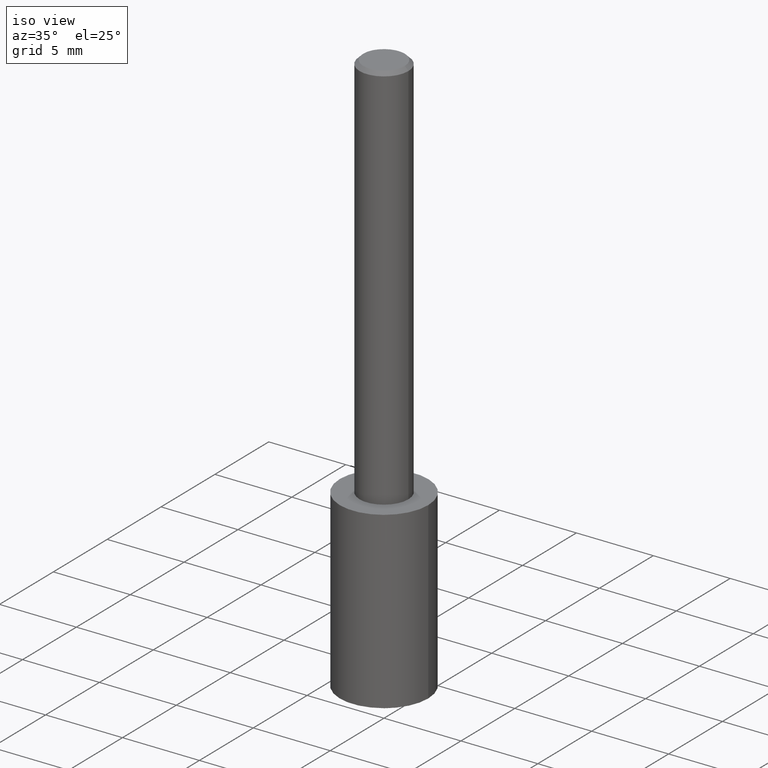
[diagram: clean part render]
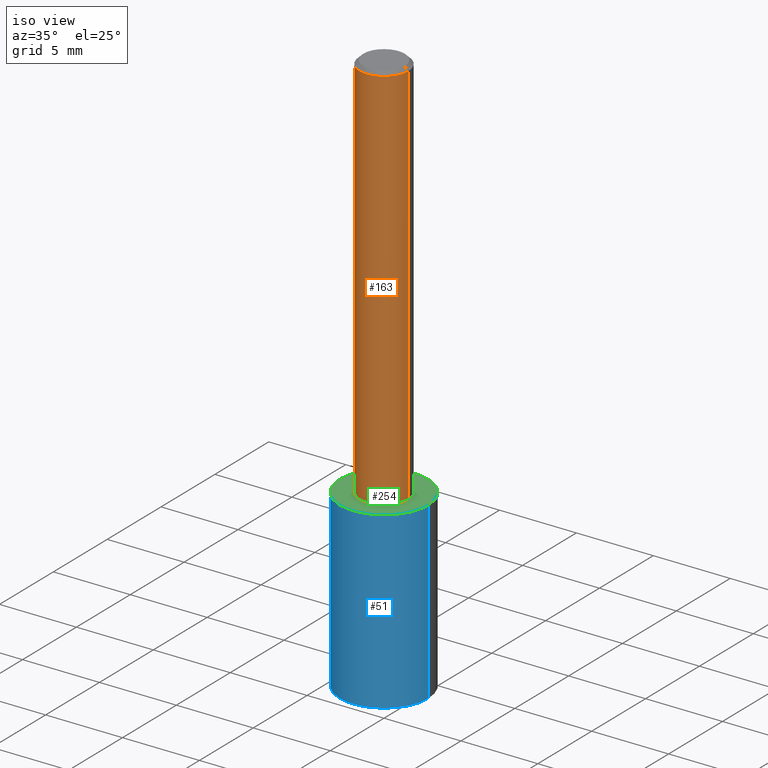
[diagram: same view with three faces highlighted in distinct colors, each labeled with its STEP entity id]
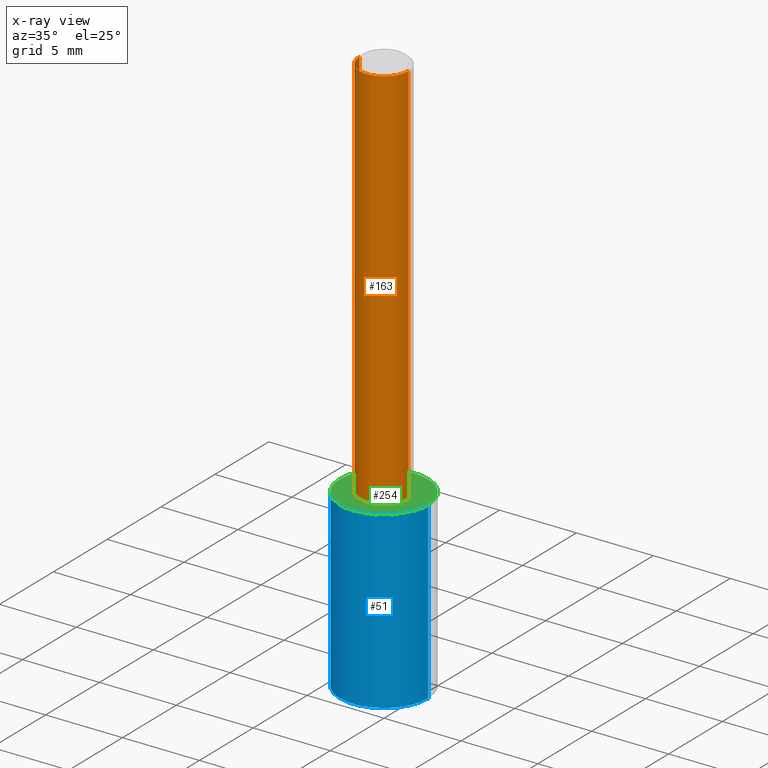
[diagram: x-ray of the same camera — body ghosted, the three highlighted faces saturated]
A machine part, iso view with three faces highlighted in distinct colors.
The next image is the same camera in x-ray (body ghosted, the three faces saturated) — at least one of them is partly hidden behind the body in this view.
Their STEP definitions:

[orange] entity #163 — the highlighted cylindrical surface (edge-blend (fillet) strip) has radius 1.5875 mm, axis along (-0, 0, 1).
#3 = DIRECTION ( 'NONE',  ( -2.445468806185136597E-29, 3.491481338843145583E-15, 1.000000000000000000 ) ) ;
#6 = DIRECTION ( 'NONE',  ( -2.445468806185136877E-29, 3.491481338843145188E-15, 1.000000000000000000 ) ) ;
#9 = AXIS2_PLACEMENT_3D ( 'NONE', #190, #183, #287 ) ;
#10 = EDGE_CURVE ( 'NONE', #187, #335, #184, .T. ) ;
#11 = DIRECTION ( 'NONE',  ( -2.445468806185136877E-29, 3.491481338843145188E-15, 1.000000000000000000 ) ) ;
#23 = ORIENTED_EDGE ( 'NONE', *, *, #70, .F. ) ;
#28 = AXIS2_PLACEMENT_3D ( 'NONE', #216, #3, #319 ) ;
#40 = CARTESIAN_POINT ( 'NONE',  ( 0.06250000000000006939, -4.364351673553921624E-16, 3.047610484872463374E-30 ) ) ;
#62 = ORIENTED_EDGE ( 'NONE', *, *, #10, .T. ) ;
#70 = EDGE_CURVE ( 'NONE', #187, #209, #292, .T. ) ;
#105 = DIRECTION ( 'NONE',  ( 1.000000000000000000, -6.982962677686266711E-15, 0.000000000000000000 ) ) ;
#136 = EDGE_LOOP ( 'NONE', ( #23, #62, #225, #299 ) ) ;
#142 = EDGE_CURVE ( 'NONE', #209, #327, #338, .T. ) ;
#146 = CARTESIAN_POINT ( 'NONE',  ( -0.06250000000000000000, -1.318017778347336672E-15, -0.009375000000000060368 ) ) ;
#163 = ADVANCED_FACE ( 'NONE', ( #245 ), #270, .T. ) ;
#165 = AXIS2_PLACEMENT_3D ( 'NONE', #321, #201, #105 ) ;
#183 = DIRECTION ( 'NONE',  ( -2.445468806185136597E-29, 3.491481338843145583E-15, 1.000000000000000000 ) ) ;
#184 = CIRCLE ( 'NONE', #9, 0.06250000000000012490 ) ;
#187 = VERTEX_POINT ( 'NONE', #218 ) ;
#190 = CARTESIAN_POINT ( 'NONE',  ( 2.445468806185137438E-29, -3.491481338843146371E-15, -1.000000000000000222 ) ) ;
#201 = DIRECTION ( 'NONE',  ( -2.445468806185136597E-29, 3.491481338843145583E-15, 1.000000000000000000 ) ) ;
#209 = VERTEX_POINT ( 'NONE', #146 ) ;
#216 = CARTESIAN_POINT ( 'NONE',  ( 0.000000000000000000, 0.000000000000000000, 0.000000000000000000 ) ) ;
#217 = VECTOR ( 'NONE', #11, 39.37007874015748143 ) ;
#218 = CARTESIAN_POINT ( 'NONE',  ( -0.06250000000000012490, -1.318017778347335489E-15, -1.000000000000000222 ) ) ;
#224 = CARTESIAN_POINT ( 'NONE',  ( 0.06250000000000000000, -4.691678049070463404E-16, -0.009375000000000060368 ) ) ;
#225 = ORIENTED_EDGE ( 'NONE', *, *, #272, .T. ) ;
#245 = FACE_OUTER_BOUND ( 'NONE', #136, .T. ) ;
#270 = CYLINDRICAL_SURFACE ( 'NONE', #28, 0.06250000000000006939 ) ;
#272 = EDGE_CURVE ( 'NONE', #335, #327, #302, .T. ) ;
#274 = CARTESIAN_POINT ( 'NONE',  ( -0.06250000000000006939, 4.440892098500631092E-16, -3.074334431409319267E-30 ) ) ;
#280 = CARTESIAN_POINT ( 'NONE',  ( 0.06250000000000012490, -3.927916506198539224E-15, -1.000000000000000222 ) ) ;
#287 = DIRECTION ( 'NONE',  ( 1.000000000000000000, -6.982962677686264344E-15, 0.000000000000000000 ) ) ;
#292 = LINE ( 'NONE', #274, #309 ) ;
#299 = ORIENTED_EDGE ( 'NONE', *, *, #142, .F. ) ;
#302 = LINE ( 'NONE', #40, #217 ) ;
#309 = VECTOR ( 'NONE', #6, 39.37007874015748143 ) ;
#319 = DIRECTION ( 'NONE',  ( 1.000000000000000000, -6.982962677686266711E-15, 4.876176775795935793E-29 ) ) ;
#321 = CARTESIAN_POINT ( 'NONE',  ( 2.292627005798580623E-31, -3.273263755165470184E-17, -0.009375000000000060368 ) ) ;
#327 = VERTEX_POINT ( 'NONE', #224 ) ;
#335 = VERTEX_POINT ( 'NONE', #280 ) ;
#338 = CIRCLE ( 'NONE', #165, 0.06250000000000000000 ) ;

[blue] entity #51 — the highlighted cylindrical surface (partial cylindrical patch) has radius 2.8753 mm, axis along (-0, 0, 1).
#8 = DIRECTION ( 'NONE',  ( -2.445468806185136597E-29, 3.491481338843145583E-15, 1.000000000000000000 ) ) ;
#22 = ORIENTED_EDGE ( 'NONE', *, *, #86, .T. ) ;
#29 = EDGE_LOOP ( 'NONE', ( #101, #215, #22, #242 ) ) ;
#30 = DIRECTION ( 'NONE',  ( -2.445468806185136597E-29, 3.491481338843145583E-15, 1.000000000000000000 ) ) ;
#38 = CIRCLE ( 'NONE', #125, 0.1131999999999999812 ) ;
#51 = ADVANCED_FACE ( 'NONE', ( #291 ), #74, .T. ) ;
#54 = LINE ( 'NONE', #78, #135 ) ;
#57 = DIRECTION ( 'NONE',  ( -2.445468806185136597E-29, 3.491481338843145583E-15, 1.000000000000000000 ) ) ;
#66 = DIRECTION ( 'NONE',  ( -2.445468806185136877E-29, 3.491481338843145188E-15, 1.000000000000000000 ) ) ;
#68 = EDGE_CURVE ( 'NONE', #133, #71, #38, .T. ) ;
#71 = VERTEX_POINT ( 'NONE', #220 ) ;
#74 = CYLINDRICAL_SURFACE ( 'NONE', #192, 0.1131999999999999812 ) ;
#78 = CARTESIAN_POINT ( 'NONE',  ( 0.1131999999999999812, -4.281952713957231192E-15, -1.000000000000000222 ) ) ;
#83 = DIRECTION ( 'NONE',  ( -2.445468806185136877E-29, 3.491481338843145188E-15, 1.000000000000000000 ) ) ;
#84 = CIRCLE ( 'NONE', #234, 0.1131999999999999812 ) ;
#86 = EDGE_CURVE ( 'NONE', #95, #71, #54, .T. ) ;
#88 = LINE ( 'NONE', #113, #275 ) ;
#95 = VERTEX_POINT ( 'NONE', #109 ) ;
#101 = ORIENTED_EDGE ( 'NONE', *, *, #323, .F. ) ;
#108 = CARTESIAN_POINT ( 'NONE',  ( 3.539116627083612931E-29, -5.052920580380713708E-15, -1.447213973096854511 ) ) ;
#109 = CARTESIAN_POINT ( 'NONE',  ( 0.1132000000000000089, -5.843391955494798923E-15, -1.447213973096854511 ) ) ;
#110 = DIRECTION ( 'NONE',  ( 1.000000000000000000, -6.982962677686269077E-15, 0.000000000000000000 ) ) ;
#113 = CARTESIAN_POINT ( 'NONE',  ( -0.1131999999999999812, -2.687146961962713193E-15, -1.000000000000000222 ) ) ;
#125 = AXIS2_PLACEMENT_3D ( 'NONE', #243, #57, #168 ) ;
#133 = VERTEX_POINT ( 'NONE', #296 ) ;
#135 = VECTOR ( 'NONE', #83, 39.37007874015748143 ) ;
#168 = DIRECTION ( 'NONE',  ( 1.000000000000000000, -6.982962677686269077E-15, 0.000000000000000000 ) ) ;
#173 = EDGE_CURVE ( 'NONE', #307, #95, #84, .T. ) ;
#192 = AXIS2_PLACEMENT_3D ( 'NONE', #277, #8, #247 ) ;
#215 = ORIENTED_EDGE ( 'NONE', *, *, #173, .T. ) ;
#220 = CARTESIAN_POINT ( 'NONE',  ( 0.1131999999999999812, -4.281952713957231192E-15, -1.000000000000000222 ) ) ;
#234 = AXIS2_PLACEMENT_3D ( 'NONE', #108, #30, #110 ) ;
#242 = ORIENTED_EDGE ( 'NONE', *, *, #68, .F. ) ;
#243 = CARTESIAN_POINT ( 'NONE',  ( 2.445468806185136877E-29, -3.491481338843145977E-15, -1.000000000000000222 ) ) ;
#247 = DIRECTION ( 'NONE',  ( 1.000000000000000000, -6.982962677686264344E-15, 0.000000000000000000 ) ) ;
#275 = VECTOR ( 'NONE', #66, 39.37007874015748143 ) ;
#277 = CARTESIAN_POINT ( 'NONE',  ( 2.445468806185137438E-29, -3.491481338843146371E-15, -1.000000000000000222 ) ) ;
#281 = CARTESIAN_POINT ( 'NONE',  ( -0.1132000000000000089, -4.248586203500279741E-15, -1.447213973096854511 ) ) ;
#291 = FACE_OUTER_BOUND ( 'NONE', #29, .T. ) ;
#296 = CARTESIAN_POINT ( 'NONE',  ( -0.1131999999999999812, -3.467866582731496664E-15, -1.000000000000000222 ) ) ;
#307 = VERTEX_POINT ( 'NONE', #281 ) ;
#323 = EDGE_CURVE ( 'NONE', #307, #133, #88, .T. ) ;

[green] entity #254 — the highlighted planar face has unit normal (0, -0, -1).
#17 = CARTESIAN_POINT ( 'NONE',  ( 3.288065651629910335E-29, -2.284834698532075829E-15, -1.000000000000000222 ) ) ;
#38 = CIRCLE ( 'NONE', #125, 0.1131999999999999812 ) ;
#44 = EDGE_CURVE ( 'NONE', #71, #133, #232, .T. ) ;
#48 = CARTESIAN_POINT ( 'NONE',  ( 2.445468806185136877E-29, -3.491481338843145977E-15, -1.000000000000000222 ) ) ;
#57 = DIRECTION ( 'NONE',  ( -2.445468806185136597E-29, 3.491481338843145583E-15, 1.000000000000000000 ) ) ;
#68 = EDGE_CURVE ( 'NONE', #133, #71, #38, .T. ) ;
#71 = VERTEX_POINT ( 'NONE', #220 ) ;
#93 = AXIS2_PLACEMENT_3D ( 'NONE', #17, #298, #229 ) ;
#119 = FACE_OUTER_BOUND ( 'NONE', #339, .T. ) ;
#125 = AXIS2_PLACEMENT_3D ( 'NONE', #243, #57, #168 ) ;
#130 = DIRECTION ( 'NONE',  ( -2.445468806185136597E-29, 3.491481338843145583E-15, 1.000000000000000000 ) ) ;
#133 = VERTEX_POINT ( 'NONE', #296 ) ;
#168 = DIRECTION ( 'NONE',  ( 1.000000000000000000, -6.982962677686269077E-15, 0.000000000000000000 ) ) ;
#181 = ORIENTED_EDGE ( 'NONE', *, *, #44, .T. ) ;
#220 = CARTESIAN_POINT ( 'NONE',  ( 0.1131999999999999812, -4.281952713957231192E-15, -1.000000000000000222 ) ) ;
#229 = DIRECTION ( 'NONE',  ( -1.000000000000000000, 6.982962677686265922E-15, -4.876176775795935793E-29 ) ) ;
#232 = CIRCLE ( 'NONE', #293, 0.1131999999999999812 ) ;
#233 = ORIENTED_EDGE ( 'NONE', *, *, #68, .T. ) ;
#243 = CARTESIAN_POINT ( 'NONE',  ( 2.445468806185136877E-29, -3.491481338843145977E-15, -1.000000000000000222 ) ) ;
#252 = PLANE ( 'NONE',  #93 ) ;
#254 = ADVANCED_FACE ( 'NONE', ( #119 ), #252, .F. ) ;
#264 = DIRECTION ( 'NONE',  ( 1.000000000000000000, -6.982962677686269077E-15, 0.000000000000000000 ) ) ;
#293 = AXIS2_PLACEMENT_3D ( 'NONE', #48, #130, #264 ) ;
#296 = CARTESIAN_POINT ( 'NONE',  ( -0.1131999999999999812, -3.467866582731496664E-15, -1.000000000000000222 ) ) ;
#298 = DIRECTION ( 'NONE',  ( 2.438088387897960049E-29, -3.491481338843145188E-15, -1.000000000000000000 ) ) ;
#339 = EDGE_LOOP ( 'NONE', ( #181, #233 ) ) ;